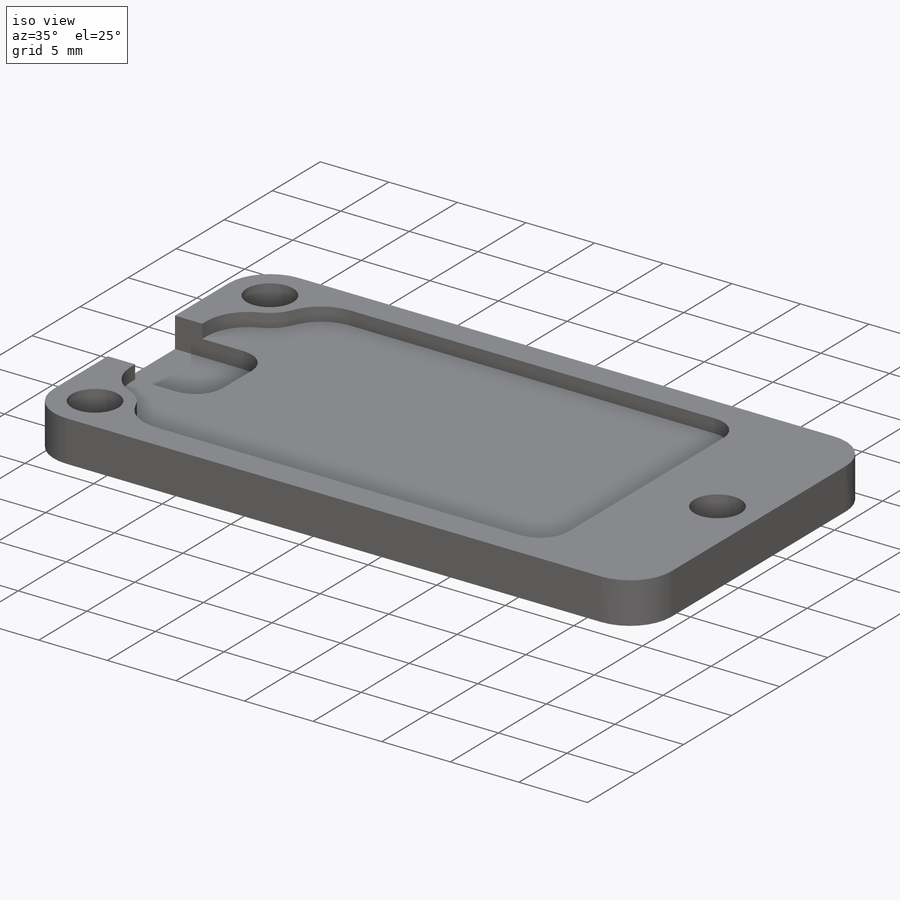
[diagram: iso view]
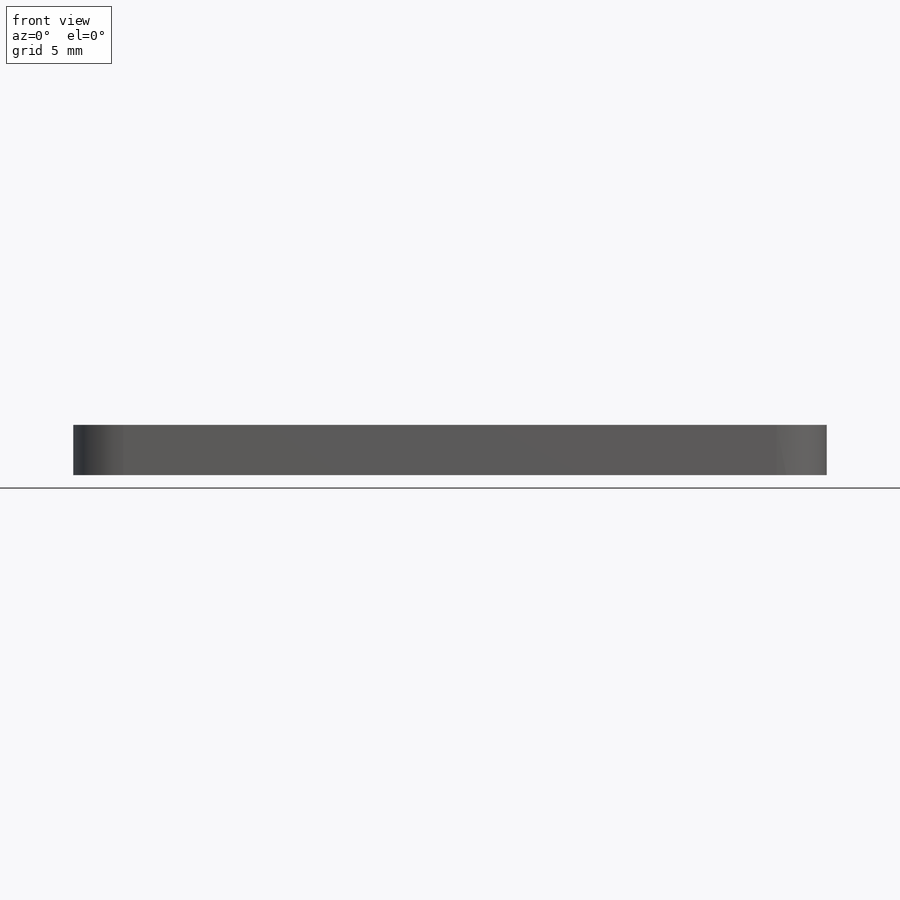
[diagram: front view]
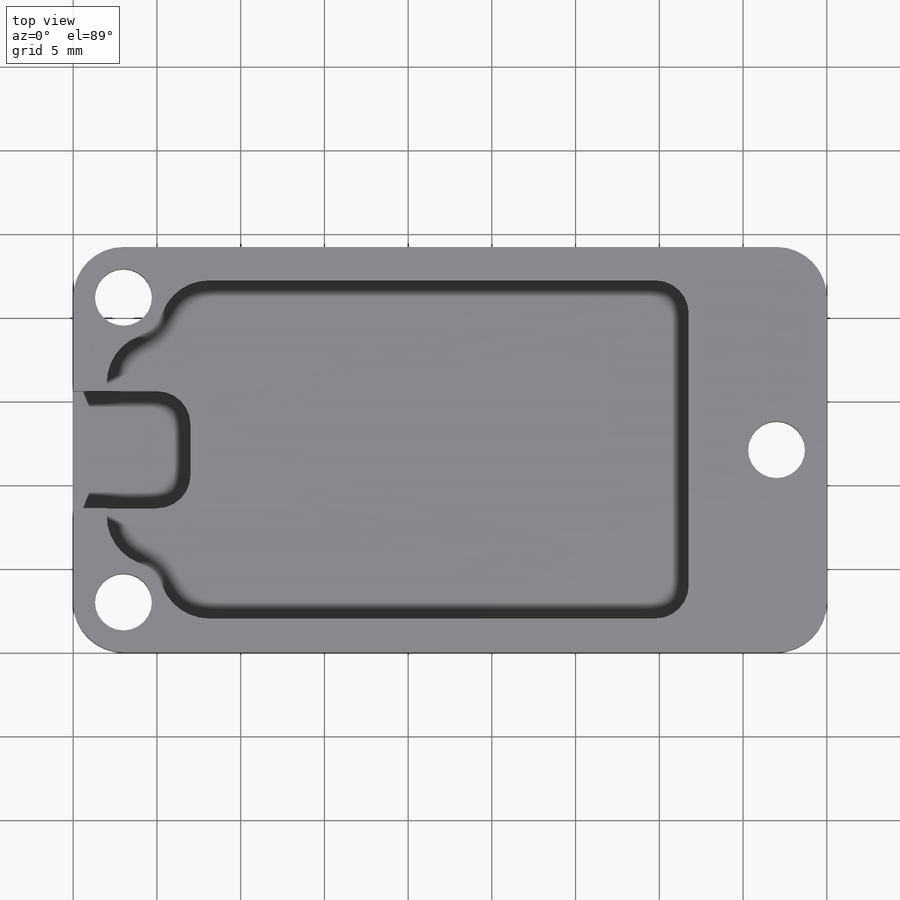
[diagram: top view]
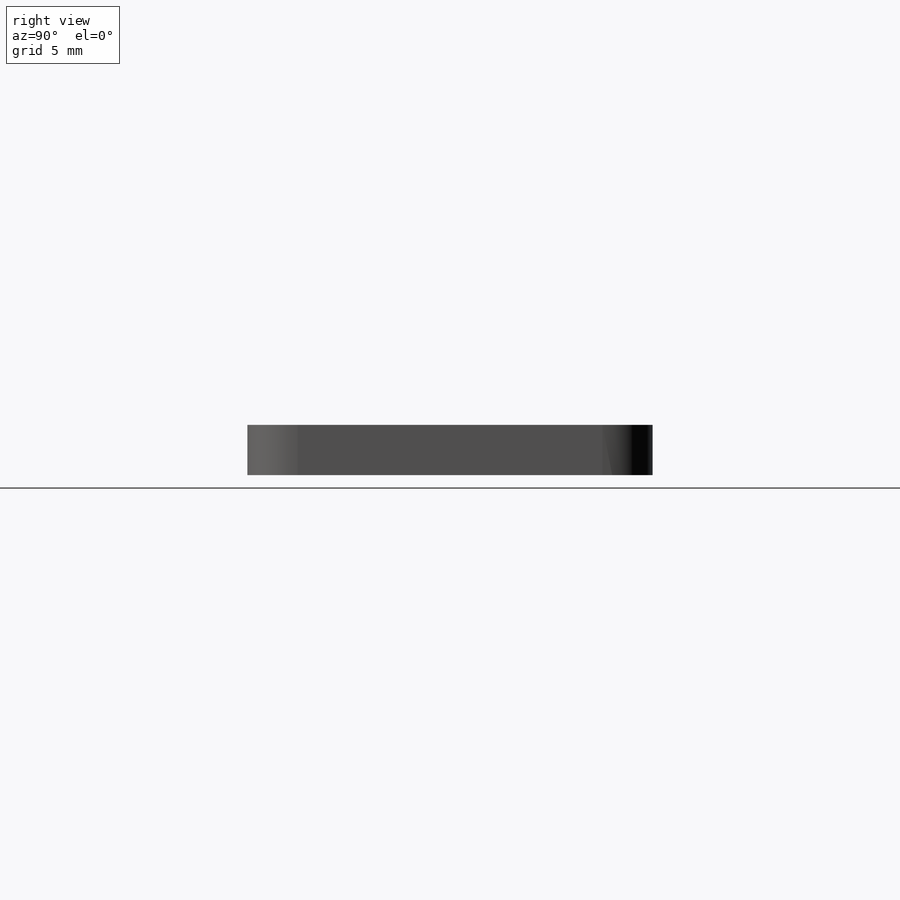
[diagram: right view]
SOLIDWORKS PART (.sldprt)
format: sldprt  version: not decoded by parser v0  size: 319,488 bytes
history: native  units: mm
features: sketch x6, plane x3, fillet x3, cut_extrude x2, material x1, extrude x1, hole x1 (+8 scaffold rows collapsed)
feature tree (25):
  scaffold x8  (default folders/planes/origin — collapsed)
  material  "3.1355 (EN-AW 2024)"
  plane  "Спереди"
  plane  "Сверху"
  plane  "Справа"
  sketch  "Эскиз1"  dims[D1=24.2mm D2=45.0mm]
  extrude  "Бобышка-Вытянуть1"  Depth=3mm
  fillet  "Скругление1"  Radius=3mm
  sketch  "Эскиз4"
  hole  "Отверстие с зазором M31"  [1 undecoded]
  sketch  "Эскиз5"
  sketch  "Эскиз6"  dims[Диаметр отверстия=3.4mm Глубина отверстия=3.0mm Угол заточки сверла=118.0deg]
  sketch  "Эскиз7"
  cut_extrude  "Вырез-Вытянуть1"  Depth=1mm
  fillet  "Скругление2"  Radius=2mm
  sketch  "Эскиз3"  dims[D1=7.0mm D2=7.0mm]
  cut_extrude  "Вырез-Вытянуть2"  Depth=2.2mm
  fillet  "Скругление3"  Radius=2mm
decode coverage: 9 of 13 modeling features carry decoded parameters
note: 1 parameter value undecoded
note: suppression state not decoded; provenance and decode notes live in map.json
